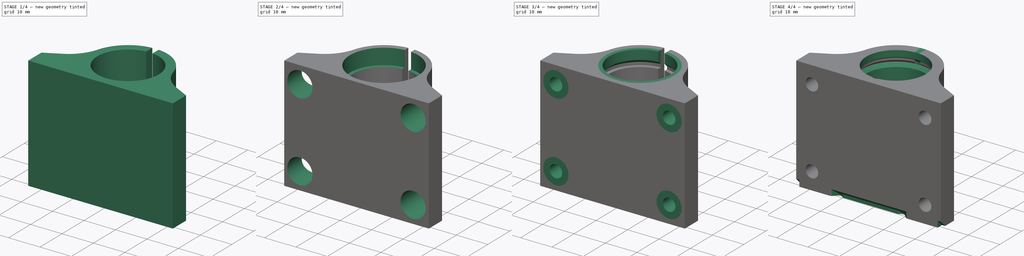
[diagram: build sequence overview — one tinted view per stage of 4, left to right]
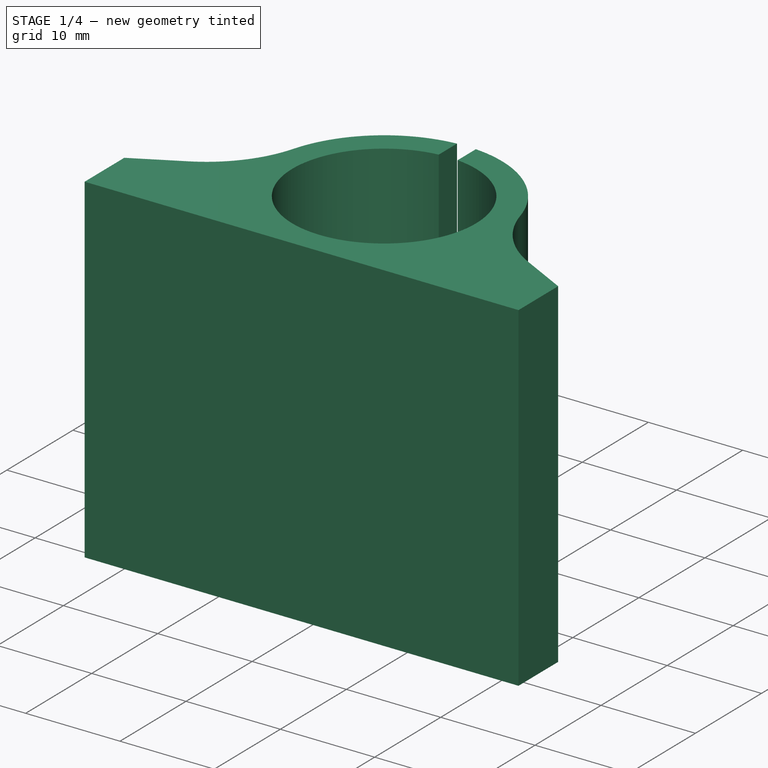
[diagram: stage 1 of 4 — iso view after this stage's code; geometry added in this stage tinted green]
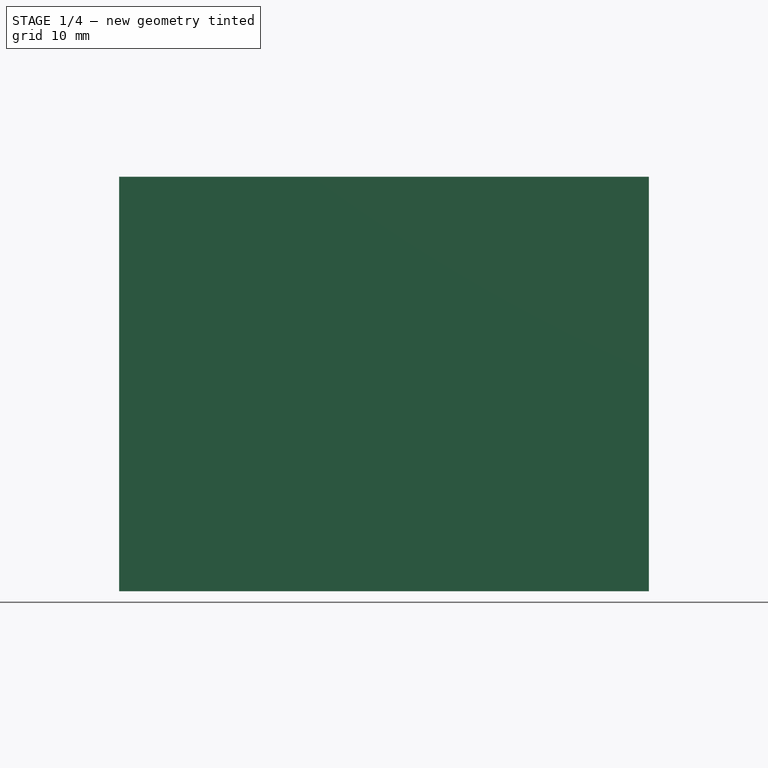
[diagram: stage 1 of 4 — front view after this stage's code; geometry added in this stage tinted green]
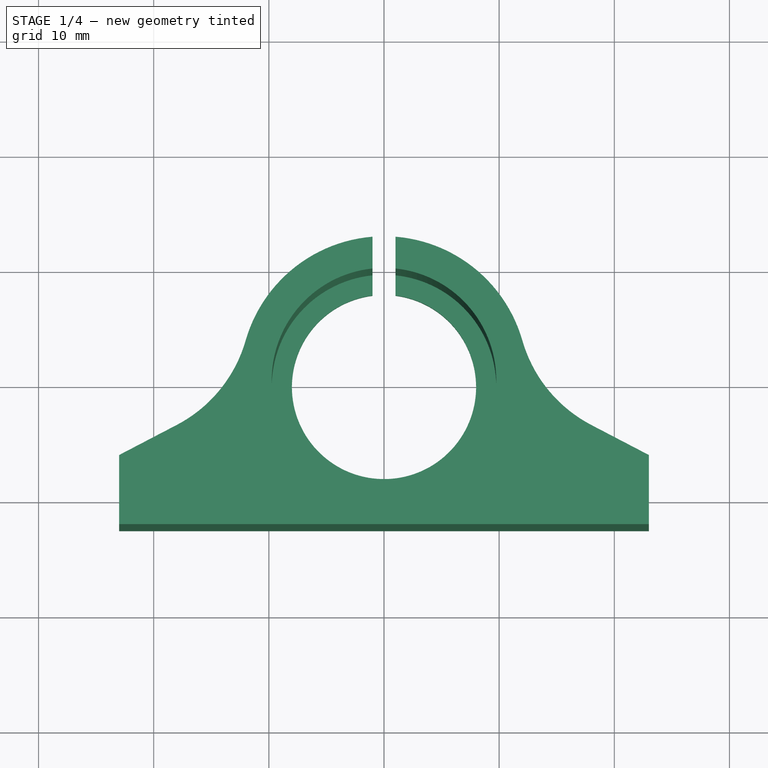
[diagram: stage 1 of 4 — top view after this stage's code; geometry added in this stage tinted green]
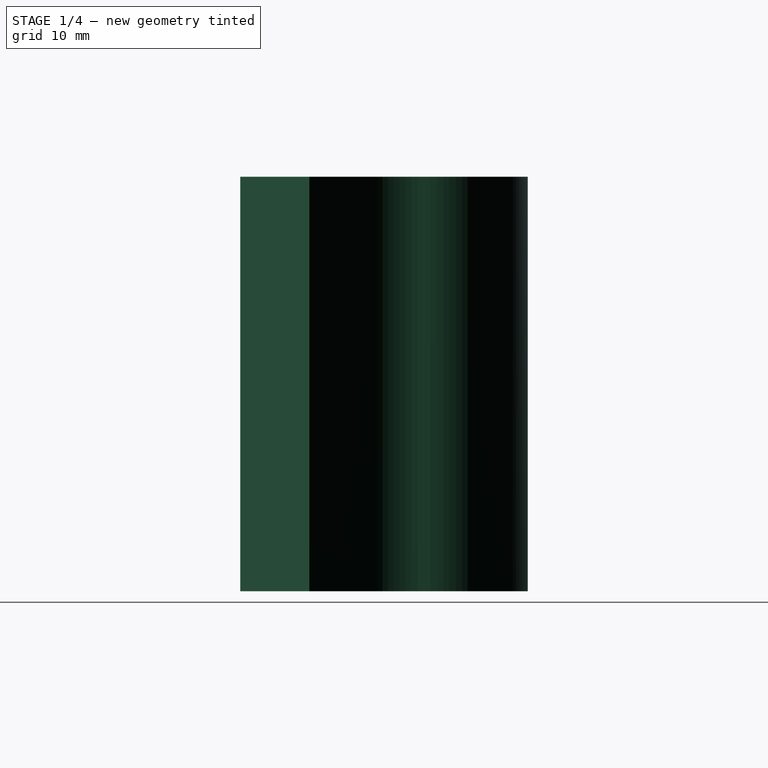
[diagram: stage 1 of 4 — right view after this stage's code; geometry added in this stage tinted green]
FCSTD DOCUMENT  (FreeCAD 0.17R13662 (Git))
Label: Y_bearing_holder_v1.3.1
License: CreativeCommons Attribution-ShareAlike
LicenseURL: http://creativecommons.org/licenses/by-sa/4.0/
objects: Sketcher::SketchObject×6, PartDesign::Pad×3, PartDesign::Pocket×3, PartDesign::Chamfer×2, Part::FeaturePython×1, PartDesign::Body×1
note: 22 computed .brp shape members not serialized (recipe doc carries the construction recipe); baked Part::Feature solids carry a one-line shape summary decoded from their .brp

FEATURE [Sketcher::SketchObject] Sketch
  MapMode = 5
  Support = -> [XY_Plane]
  sketch-geometry (12):
    g0: ArcOfCircle CenterX=0 CenterY=0 CenterZ=0 NormalX=0 NormalY=0 NormalZ=1 AngleXU=0 Radius=8 StartAngle=1.69612 EndAngle=7.72865
    g1: ArcOfCircle CenterX=0 CenterY=0 CenterZ=0 NormalX=0 NormalY=0 NormalZ=1 AngleXU=0 Radius=12.5 StartAngle=0.279029 EndAngle=1.49071
    g2: ArcOfCircle CenterX=-23.5524 CenterY=6.74784 CenterZ=0 NormalX=0 NormalY=0 NormalZ=1 AngleXU=0 Radius=12 StartAngle=5.19343 EndAngle=6.00416
    g3: ArcOfCircle CenterX=23.5524 CenterY=6.74784 CenterZ=0 NormalX=0 NormalY=0 NormalZ=1 AngleXU=0 Radius=12 StartAngle=3.42062 EndAngle=4.23135
    g4: LineSegment StartX=-18 StartY=-3.89033 StartZ=0 EndX=-23 EndY=-6.5 EndZ=0
    g5: LineSegment StartX=-23 StartY=-6.5 StartZ=0 EndX=-23 EndY=-12.5 EndZ=0
    g6: LineSegment StartX=-23 StartY=-12.5 StartZ=0 EndX=23 EndY=-12.5 EndZ=0
    g7: LineSegment StartX=23 StartY=-12.5 StartZ=0 EndX=23 EndY=-6.5 EndZ=0
    g8: LineSegment StartX=23 StartY=-6.5 StartZ=0 EndX=18 EndY=-3.89033 EndZ=0
    g9: LineSegment StartX=1 StartY=12.4599 StartZ=0 EndX=1 EndY=7.93725 EndZ=0
    g10: LineSegment StartX=-1 StartY=7.93725 StartZ=0 EndX=-1 EndY=12.4599 EndZ=0
    g11: ArcOfCircle CenterX=0 CenterY=0 CenterZ=0 NormalX=0 NormalY=0 NormalZ=1 AngleXU=0 Radius=12.5 StartAngle=1.65088 EndAngle=2.86256
  constraints (35):
    c: Radius(g0) = 8
    c: Coincident(g4,g5)
    c: Coincident(g5,g6)
    c: Coincident(g7,g8)
    c: Coincident(g0,g1)
    c: Coincident(g0,g-1)
    c: Vertical(g7)
    c: Vertical(g5)
    c: DistanceY(g5) = -12.5
    c: Equal(g5,g7)
    c: DistanceY(g7,g7) = 6
    c: Tangent(g1,g3) = 1.5708
    c: Tangent(g3,g8) = 1.5708
    c: Tangent(g2,g4) = 1.5708
    c: Radius(g1) = 12.5
    c: Equal(g8,g4)
    c: DistanceX(g8,g8) = 5
    c: Radius(g2) = 12
    c: Coincident(g11,g2) = 1.5708
    c: Equal(g3,g2)
    c: Vertical(g9)
    c: Vertical(g10)
    c: DistanceX(g10,g9) = 2
    c: Coincident(g0,g9)
    c: Coincident(g0,g10)
    c: Equal(g9,g10)
    c: Equal(g1,g11)
    c: Coincident(g1,g9)
    c: Coincident(g11,g10)
    c: Coincident(g1,g11)
    c: Coincident(g6,g7)
    c: Horizontal(g6)
    c: DistanceX(g6) = 23
    c: DistanceX(g6,g6) = 46
    c: DistanceX(g4,g4) = 5
FEATURE [PartDesign::Pad] Pad
  Length = 36
  Length2 = 100
  Midplane = true
  Profile = -> Sketch
  Type = 0
FEATURE [Sketcher::SketchObject] Sketch001
  ExternalGeometry = -> [Pad]
  MapMode = 5
  Placement = pos=(0,0,18) rot=(0,0,1;0rad)
  Support = -> [Pad]
  sketch-geometry (1):
    g0: Circle CenterX=0 CenterY=0 CenterZ=0 NormalX=0 NormalY=0 NormalZ=1 AngleXU=0 Radius=9.75
  constraints (2):
    c: Radius(g0) = 9.75
    c: Coincident(g0,g-1)
FEATURE [PartDesign::Pocket] Pocket
  BaseFeature = -> Pad
  Length = 34
  Length2 = 100
  Profile = -> Sketch001
  Type = 0
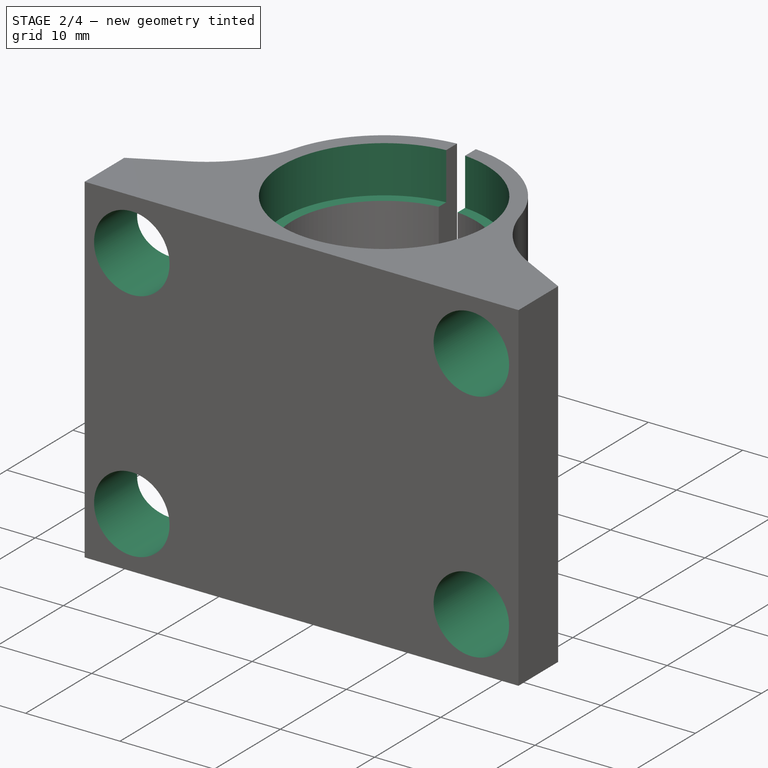
[diagram: stage 2 of 4 — iso view after this stage's code; geometry added in this stage tinted green]
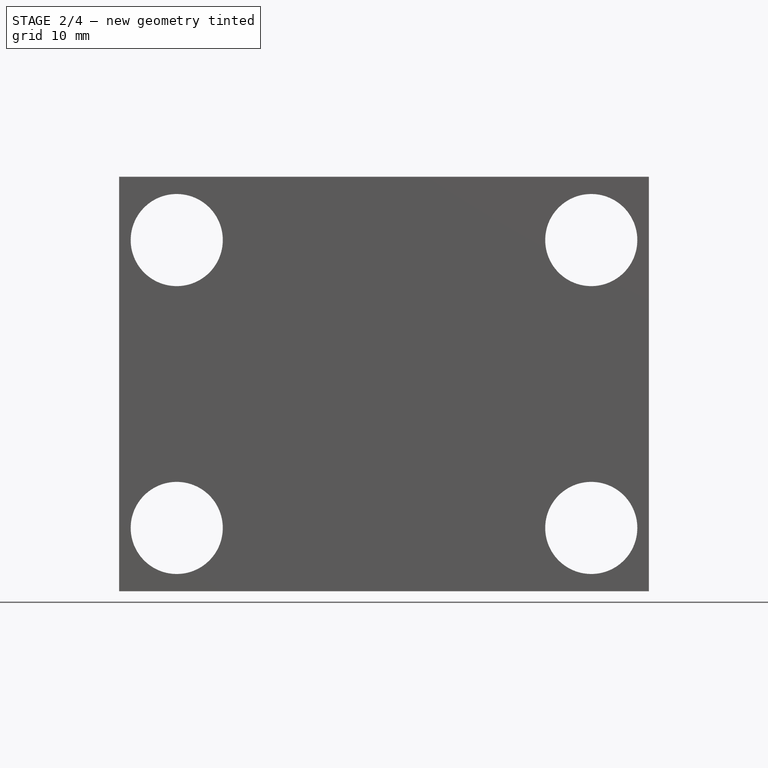
[diagram: stage 2 of 4 — front view after this stage's code; geometry added in this stage tinted green]
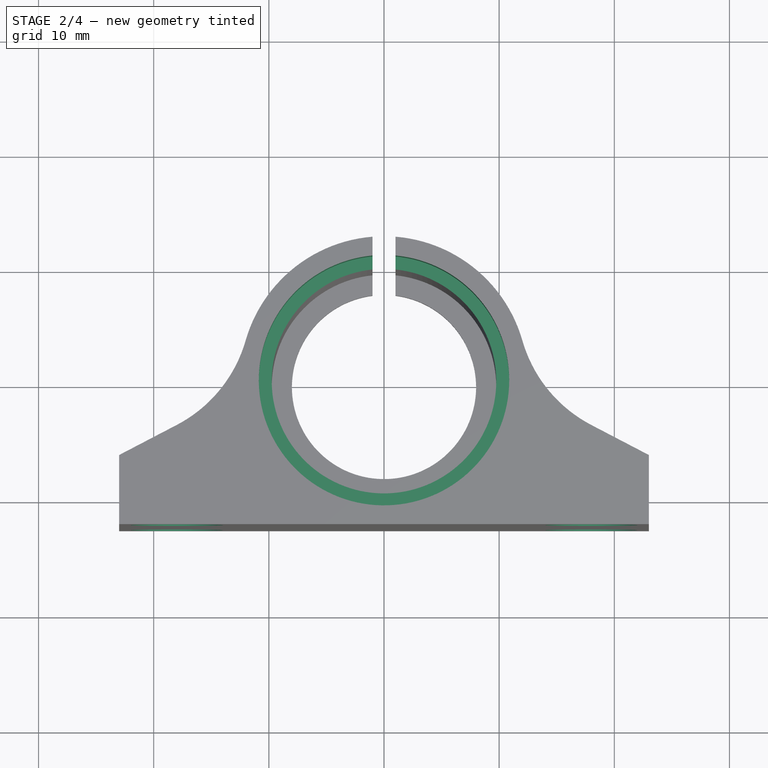
[diagram: stage 2 of 4 — top view after this stage's code; geometry added in this stage tinted green]
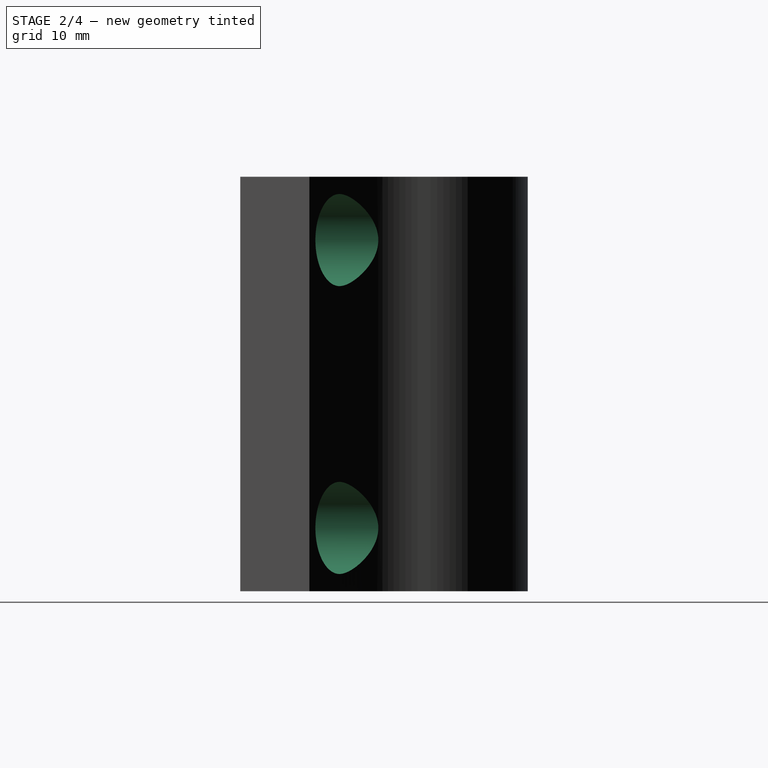
[diagram: stage 2 of 4 — right view after this stage's code; geometry added in this stage tinted green]
FEATURE [Sketcher::SketchObject] Sketch002
  MapMode = 5
  Placement = pos=(0,-12.5,0) rot=(1,0,0;1.5708rad)
  Support = -> [Pocket]
  sketch-geometry (8):
    g0: Circle CenterX=-18 CenterY=12.5 CenterZ=0 NormalX=0 NormalY=0 NormalZ=1 AngleXU=0 Radius=4
    g1: Circle CenterX=18 CenterY=12.5 CenterZ=0 NormalX=0 NormalY=0 NormalZ=1 AngleXU=0 Radius=4
    g2: Circle CenterX=18 CenterY=-12.5 CenterZ=0 NormalX=0 NormalY=0 NormalZ=1 AngleXU=0 Radius=4
    g3: Circle CenterX=-18 CenterY=-12.5 CenterZ=0 NormalX=0 NormalY=0 NormalZ=1 AngleXU=0 Radius=4
    g4: LineSegment [constr] StartX=-18 StartY=12.5 StartZ=0 EndX=18 EndY=12.5 EndZ=0
    g5: LineSegment [constr] StartX=18 StartY=12.5 StartZ=0 EndX=18 EndY=-12.5 EndZ=0
    g6: LineSegment [constr] StartX=18 StartY=-12.5 StartZ=0 EndX=-18 EndY=-12.5 EndZ=0
    g7: LineSegment [constr] StartX=-18 StartY=-12.5 StartZ=0 EndX=-18 EndY=12.5 EndZ=0
  constraints (20):
    c: Coincident(g4,g5)
    c: Coincident(g5,g6)
    c: Coincident(g6,g7)
    c: Coincident(g7,g4)
    c: Horizontal(g4)
    c: Horizontal(g6)
    c: Vertical(g5)
    c: Vertical(g7)
    c: Coincident(g2,g5)
    c: Coincident(g0,g4)
    c: Coincident(g1,g4)
    c: Coincident(g3,g6)
    c: DistanceX(g3) = -18
    c: DistanceY(g3) = -12.5
    c: DistanceY(g7,g7) = 25
    c: DistanceX(g4,g4) = 36
    c: Radius(g0) = 4
    c: Equal(g0,g1)
    c: Equal(g0,g2)
    c: Equal(g0,g3)
FEATURE [Sketcher::SketchObject] Sketch005
  MapMode = 5
  Placement = pos=(0,-12.5,0) rot=(1,0,0;1.5708rad)
  sketch-geometry (12):
    g0: Circle CenterX=-18 CenterY=12.5 CenterZ=0 NormalX=0 NormalY=0 NormalZ=1 AngleXU=0 Radius=2
    g1: Circle CenterX=-18 CenterY=12.5 CenterZ=0 NormalX=0 NormalY=0 NormalZ=1 AngleXU=0 Radius=4
    g2: Circle CenterX=18 CenterY=12.5 CenterZ=0 NormalX=0 NormalY=0 NormalZ=1 AngleXU=0 Radius=4
    g3: Circle CenterX=18 CenterY=12.5 CenterZ=0 NormalX=0 NormalY=0 NormalZ=1 AngleXU=0 Radius=2
    g4: Circle CenterX=18 CenterY=-12.5 CenterZ=0 NormalX=0 NormalY=0 NormalZ=1 AngleXU=0 Radius=2
    g5: Circle CenterX=18 CenterY=-12.5 CenterZ=0 NormalX=0 NormalY=0 NormalZ=1 AngleXU=0 Radius=4
    g6: Circle CenterX=-18 CenterY=-12.5 CenterZ=0 NormalX=0 NormalY=0 NormalZ=1 AngleXU=0 Radius=2
    g7: Circle CenterX=-18 CenterY=-12.5 CenterZ=0 NormalX=0 NormalY=0 NormalZ=1 AngleXU=0 Radius=4
    g8: LineSegment [constr] StartX=-18 StartY=12.5 StartZ=0 EndX=18 EndY=12.5 EndZ=0
    g9: LineSegment [constr] StartX=18 StartY=12.5 StartZ=0 EndX=18 EndY=-12.5 EndZ=0
    g10: LineSegment [constr] StartX=18 StartY=-12.5 StartZ=0 EndX=-18 EndY=-12.5 EndZ=0
    g11: LineSegment [constr] StartX=-18 StartY=-12.5 StartZ=0 EndX=-18 EndY=12.5 EndZ=0
  constraints (28):
    c: Coincident(g6,g7)
    c: Coincident(g0,g1)
    c: Coincident(g2,g3)
    c: Coincident(g4,g5)
    c: Radius(g4) = 2
    c: Equal(g4,g6)
    c: Equal(g4,g0)
    c: Equal(g4,g3)
    c: Equal(g2,g5)
    c: Equal(g5,g7)
    c: Equal(g7,g1)
    c: Coincident(g8,g9)
    c: Coincident(g9,g10)
    c: Coincident(g10,g11)
    c: Coincident(g11,g8)
    c: Horizontal(g8)
    c: Horizontal(g10)
    c: Vertical(g9)
    c: Vertical(g11)
    c: Coincident(g6,g10)
    c: Coincident(g4,g9)
    c: Coincident(g2,g8)
    c: Coincident(g0,g8)
    c: DistanceX(g0) = -18
    c: DistanceY(g0) = 12.5
    c: DistanceX(g8,g8) = 36
    c: DistanceY(g9,g9) = 25
    c: Radius(g2) = 4
FEATURE [PartDesign::Pocket] Pocket001
  BaseFeature = -> Pocket
  Length = 5
  Length2 = 100
  Profile = -> Sketch002
  Type = 1
FEATURE [Sketcher::SketchObject] Sketch003
  MapMode = 5
  Placement = pos=(0,0,18) rot=(0,0,1;0rad)
  Support = -> [Pocket001]
  sketch-geometry (1):
    g0: Circle CenterX=0 CenterY=0 CenterZ=0 NormalX=0 NormalY=0 NormalZ=1 AngleXU=0 Radius=10.875
  constraints (2):
    c: Radius(g0) = 10.875
    c: Coincident(g0,g-1)
FEATURE [PartDesign::Pocket] Pocket002
  BaseFeature = -> Pocket001
  Length = 5
  Length2 = 100
  Profile = -> Sketch003
  Type = 0
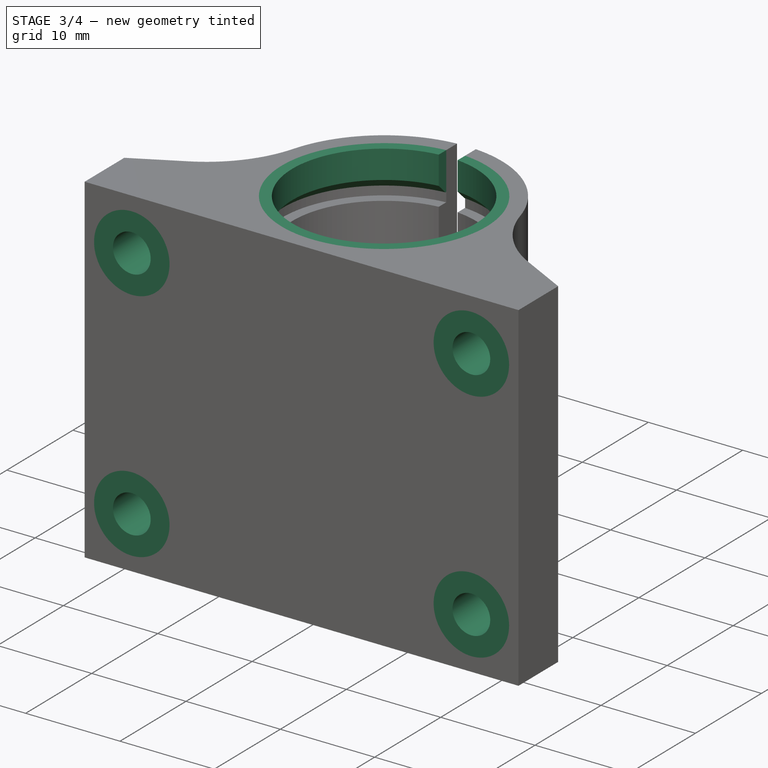
[diagram: stage 3 of 4 — iso view after this stage's code; geometry added in this stage tinted green]
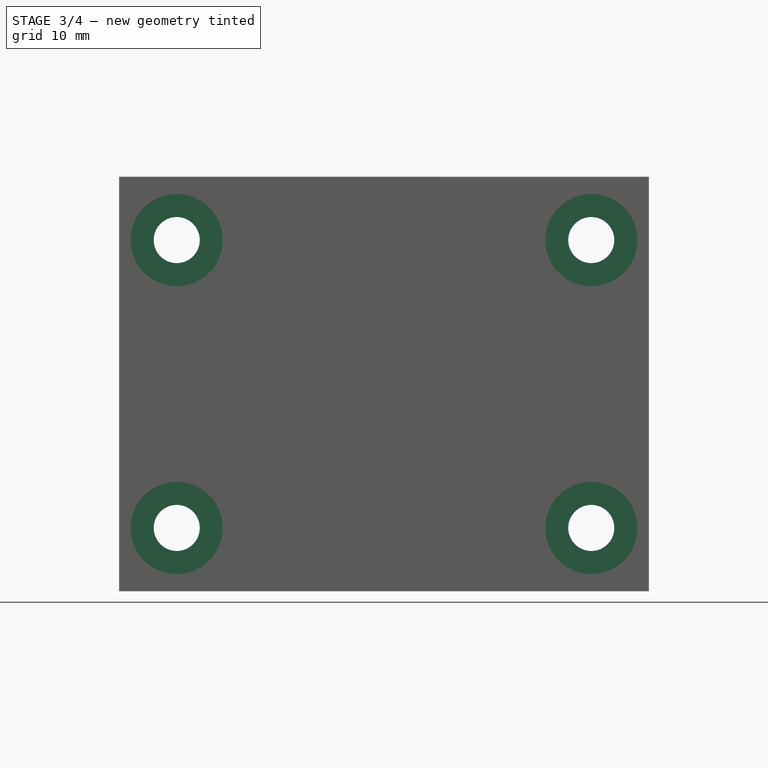
[diagram: stage 3 of 4 — front view after this stage's code; geometry added in this stage tinted green]
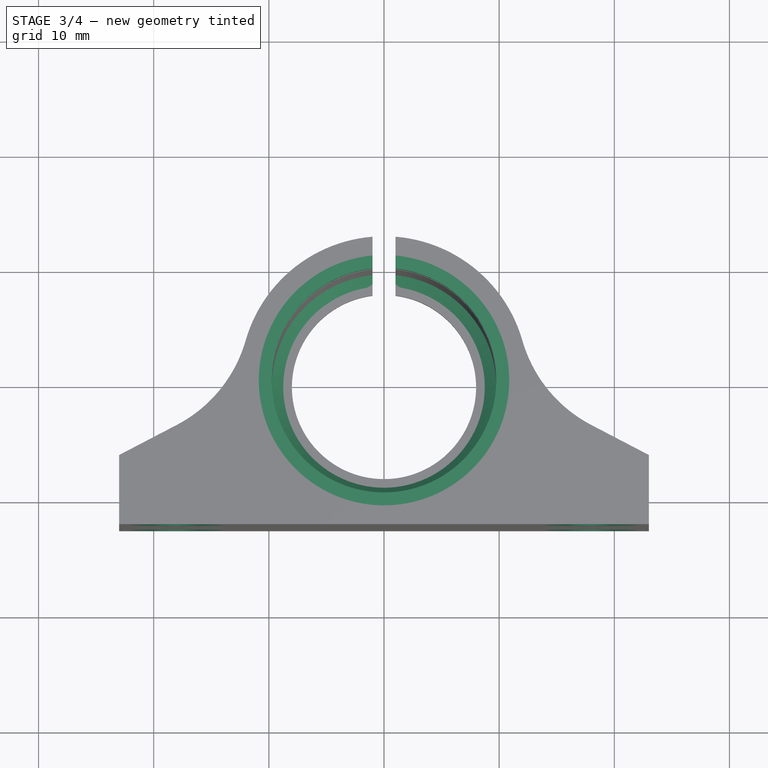
[diagram: stage 3 of 4 — top view after this stage's code; geometry added in this stage tinted green]
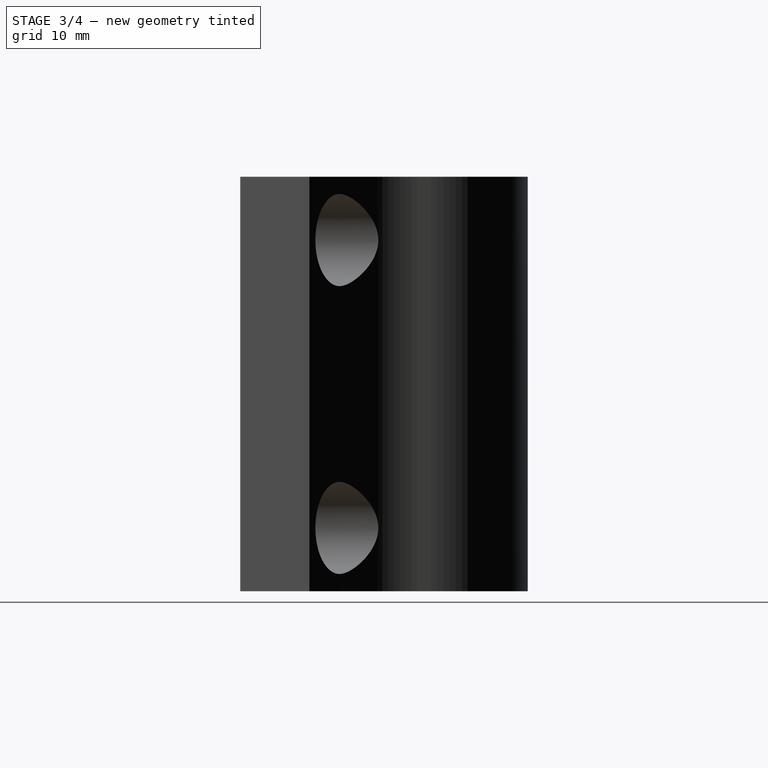
[diagram: stage 3 of 4 — right view after this stage's code; geometry added in this stage tinted green]
FEATURE [Sketcher::SketchObject] Sketch004
  ExternalGeometry = -> [Pocket002]
  MapMode = 5
  Placement = pos=(0,0,18) rot=(0,0,1;0rad)
  sketch-geometry (6):
    g0: ArcOfCircle CenterX=0 CenterY=0 CenterZ=0 NormalX=0 NormalY=0 NormalZ=1 AngleXU=0 Radius=9.75 StartAngle=1.67354 EndAngle=7.75124
    g1: ArcOfCircle CenterX=0 CenterY=0 CenterZ=0 NormalX=0 NormalY=0 NormalZ=1 AngleXU=0 Radius=10.875 StartAngle=1.66288 EndAngle=7.7619
    g2: LineSegment [constr] StartX=-1 StartY=10.8289 StartZ=0 EndX=1 EndY=10.8289 EndZ=0
    g3: LineSegment StartX=1 StartY=10.8289 StartZ=0 EndX=1 EndY=9.69858 EndZ=0
    g4: LineSegment [constr] StartX=1 StartY=9.69858 StartZ=0 EndX=-1 EndY=9.69858 EndZ=0
    g5: LineSegment StartX=-1 StartY=9.69858 StartZ=0 EndX=-1 EndY=10.8289 EndZ=0
  constraints (17):
    c: Coincident(g0,g1)
    c: Coincident(g0,g-1)
    c: Coincident(g2,g3)
    c: Coincident(g3,g4)
    c: Coincident(g4,g5)
    c: Coincident(g5,g2)
    c: Horizontal(g2)
    c: Horizontal(g4)
    c: Vertical(g3)
    c: Vertical(g5)
    c: Coincident(g0,g3)
    c: Coincident(g0,g4)
    c: Coincident(g1,g2)
    c: Coincident(g1,g2)
    c: DistanceX(g2,g2) = 2
    c: Radius(g0) = 9.75
    c: Coincident(g1,g-3)
FEATURE [PartDesign::Pad] Pad001
  BaseFeature = -> Pocket002
  Length = 4
  Length2 = 100
  Profile = -> Sketch004
  Reversed = true
  Type = 0
FEATURE [PartDesign::Pad] Pad002
  BaseFeature = -> Pad001
  Length = 6
  Length2 = 100
  Profile = -> Sketch005
  Reversed = true
  Type = 0
FEATURE [PartDesign::Chamfer] Chamfer
  Base = -> Pad002 [Edge98,Edge25]
  BaseFeature = -> Pad002
  Size = 1
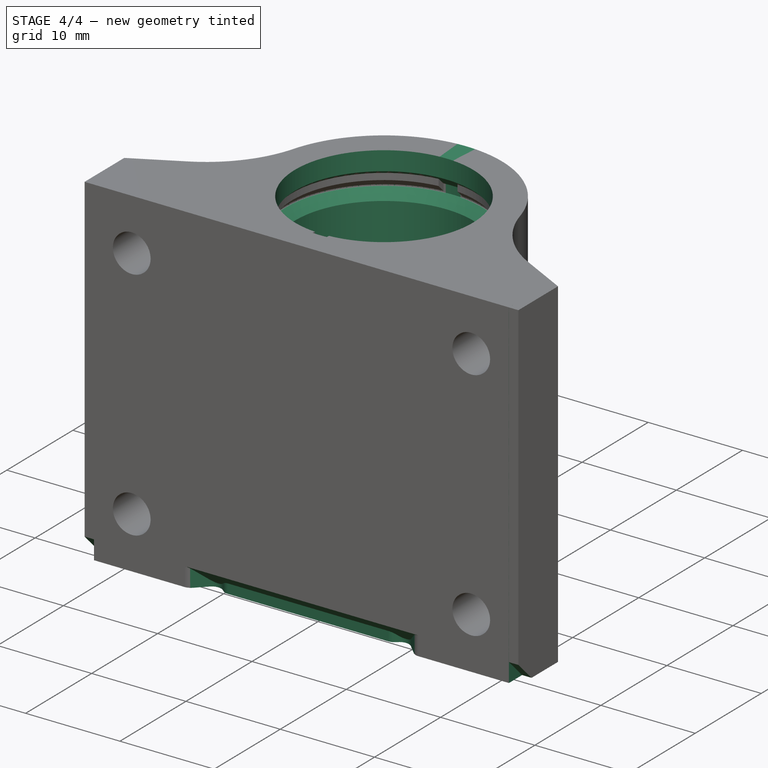
[diagram: stage 4 of 4 — iso view after this stage's code; geometry added in this stage tinted green]
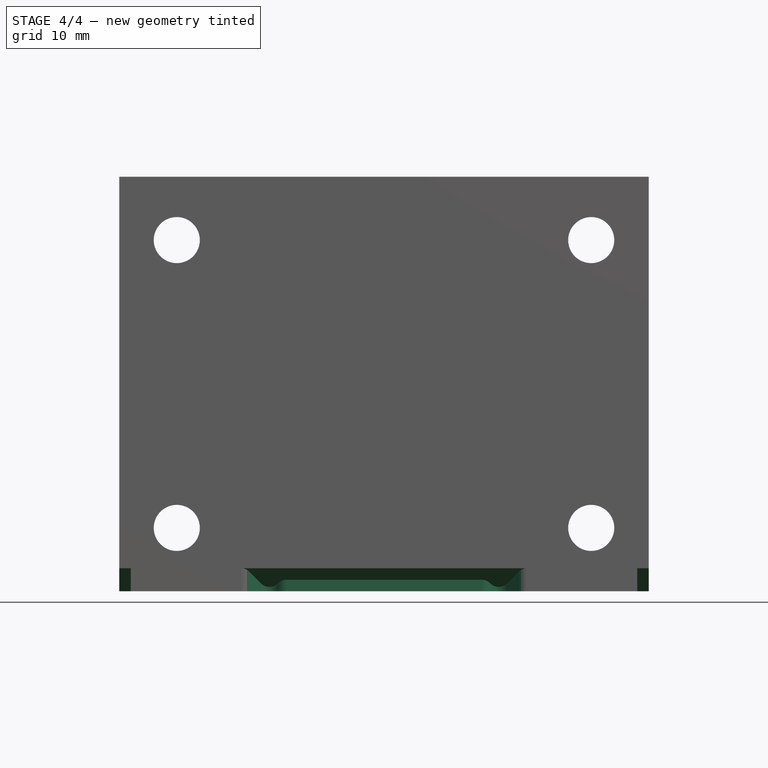
[diagram: stage 4 of 4 — front view after this stage's code; geometry added in this stage tinted green]
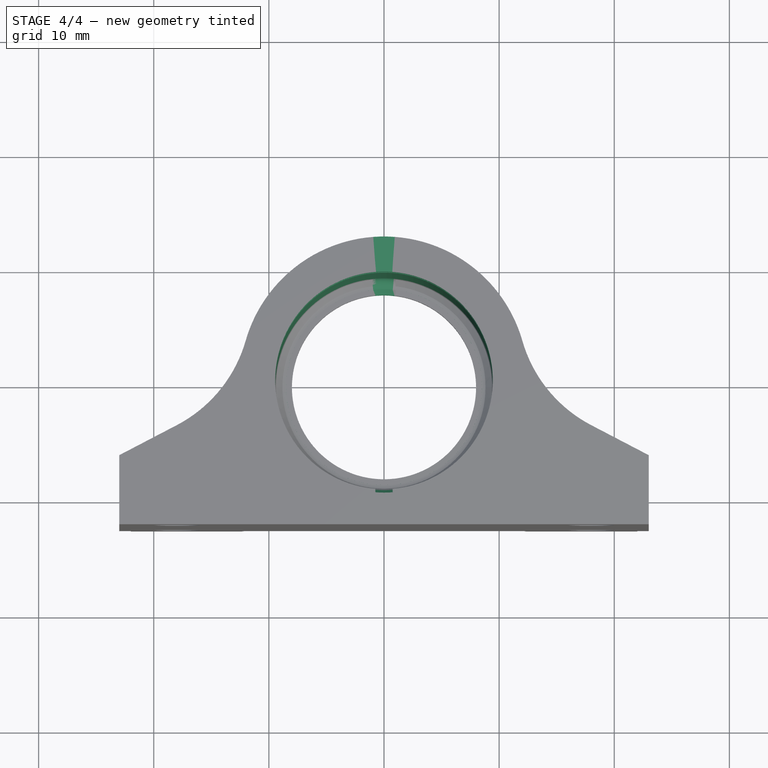
[diagram: stage 4 of 4 — top view after this stage's code; geometry added in this stage tinted green]
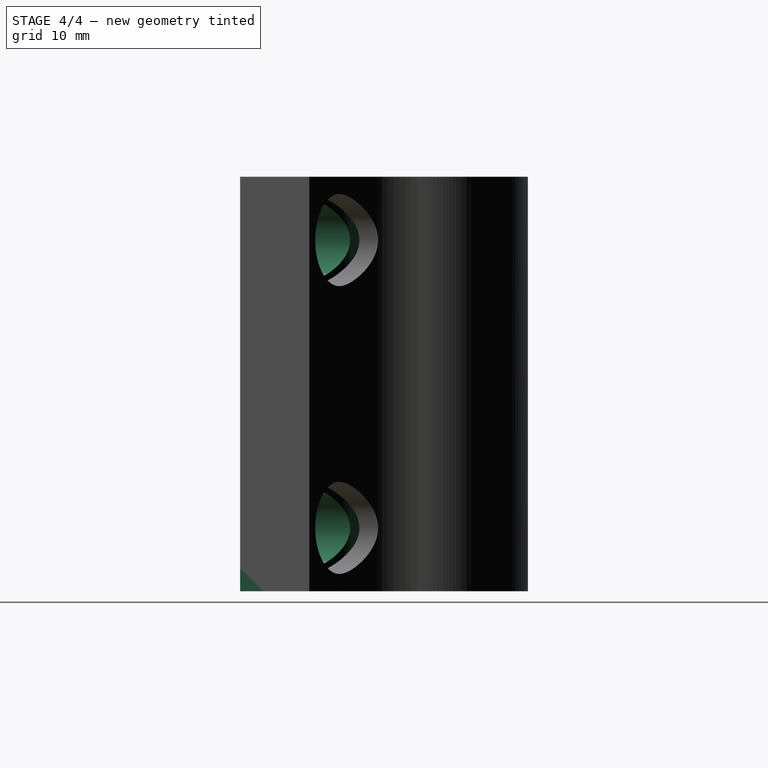
[diagram: stage 4 of 4 — right view after this stage's code; geometry added in this stage tinted green]
FEATURE [Part::FeaturePython] Quiver_Y_bearing_holder_01  # a2plus imported part (geometry in sourceFile) (typed FeaturePython)
  fixedPosition = true
  sourceFile = <userpath>/Projects/taz-quiver/Production_parts/Printed_parts/Y/bearing_holder/Quiver_Y_bearing_holder.fcstd
  timeLastImport = 1.52536e+09
  updateColors = true
FEATURE [PartDesign::Chamfer] Chamfer001
  Base = -> Chamfer [Edge25]
  BaseFeature = -> Chamfer
  Size = 2
FEATURE [PartDesign::Body] Body
  Group = -> [Sketch,Pad,Sketch001,Pocket,Sketch002,Sketch003,Sketch004,Sketch005,Pocket001,Pocket002,Pad001,Pad002,Chamfer,Chamfer001]
  Origin = -> Origin
  Tip = -> Chamfer001
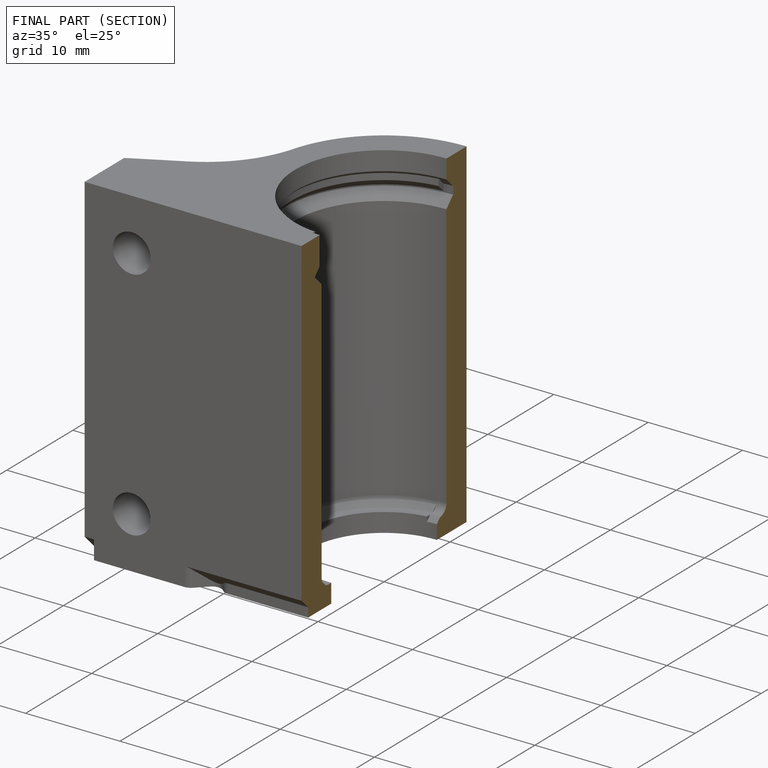
[diagram: finished part — half-section view (interior)]
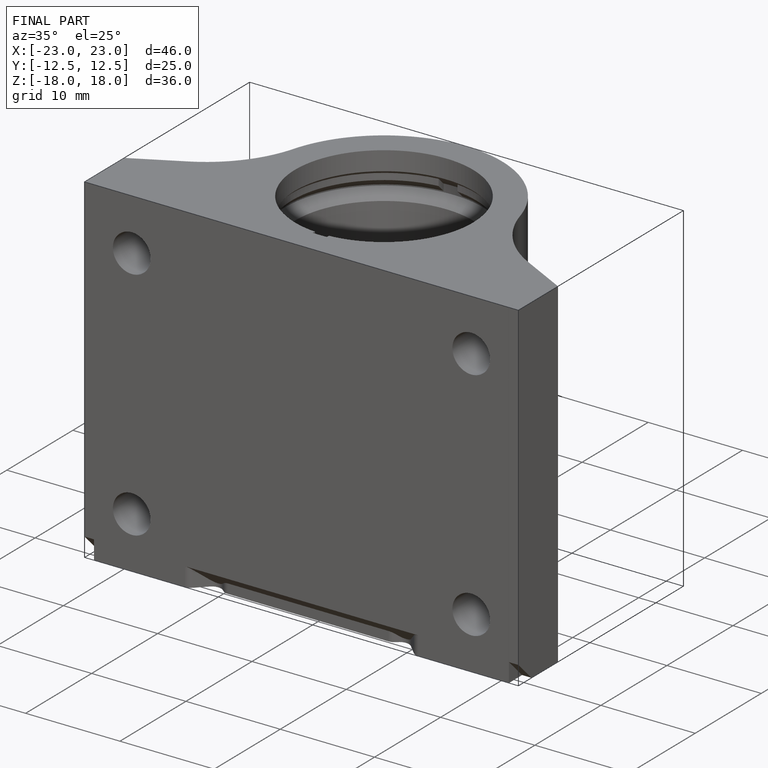
[diagram: finished part — iso view with bounding-box wireframe]
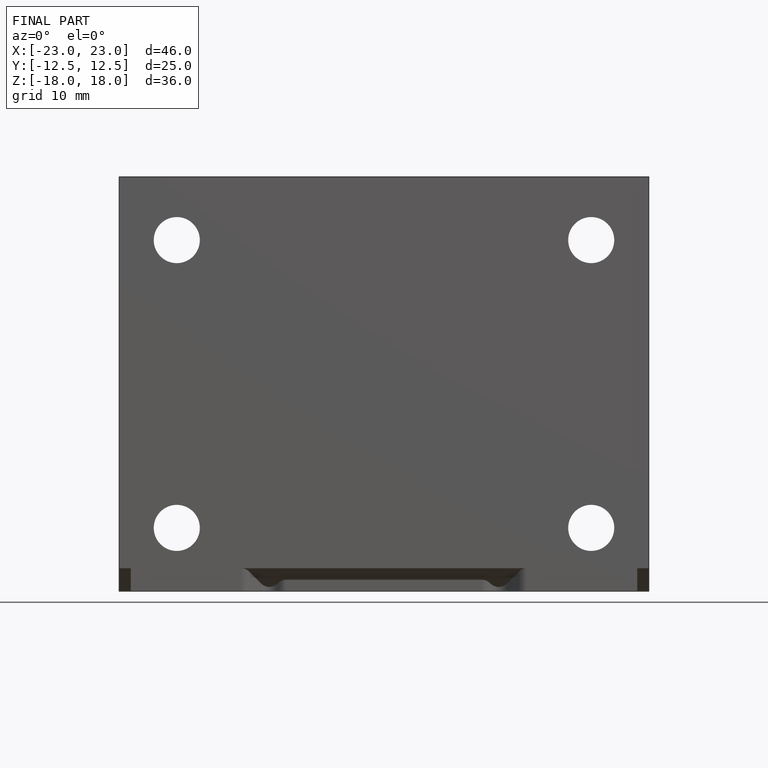
[diagram: finished part — front view with bounding-box wireframe]
